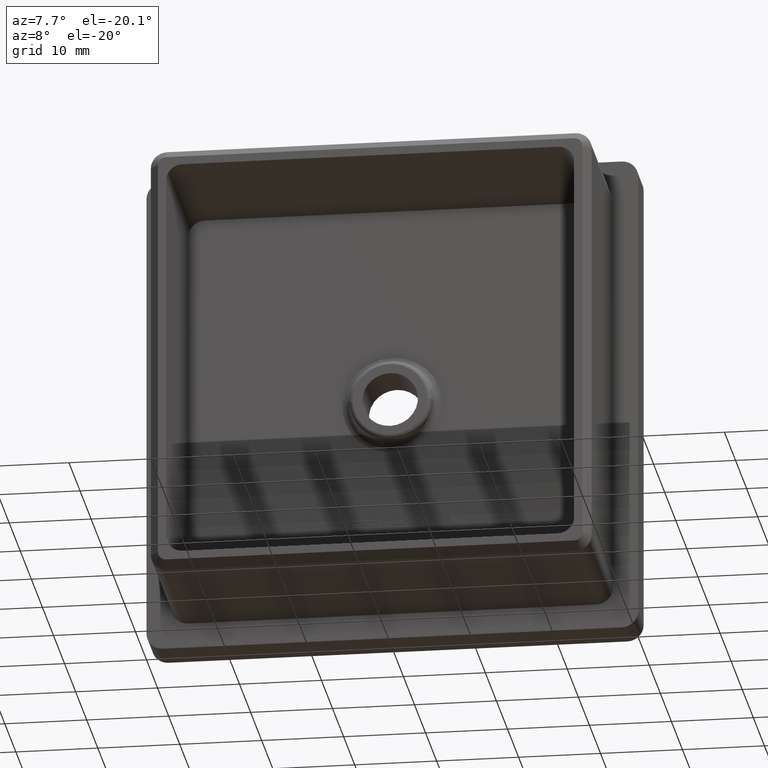
[diagram: clean part render]
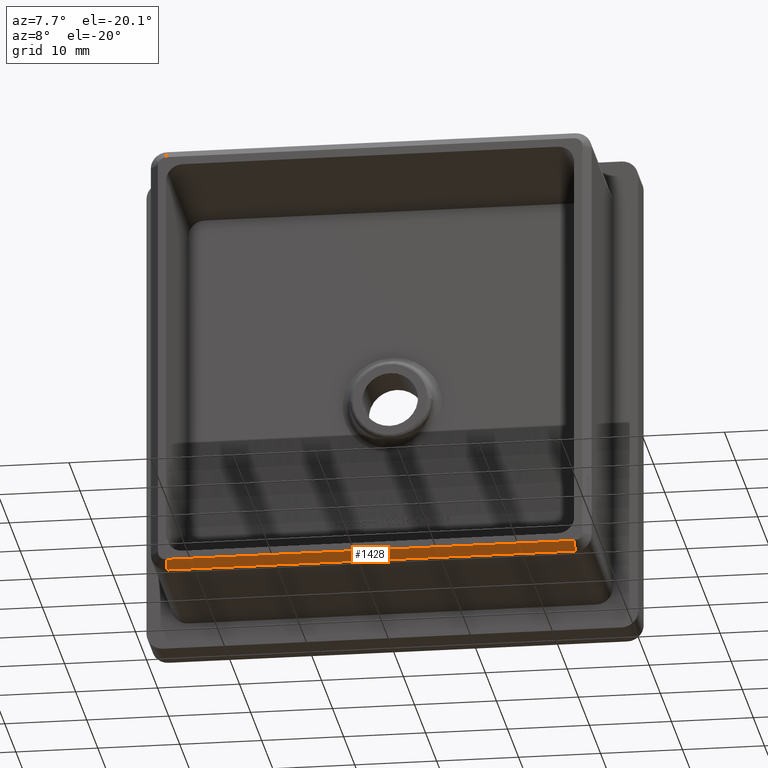
[diagram: same view with one face highlighted and labeled with its STEP entity id]
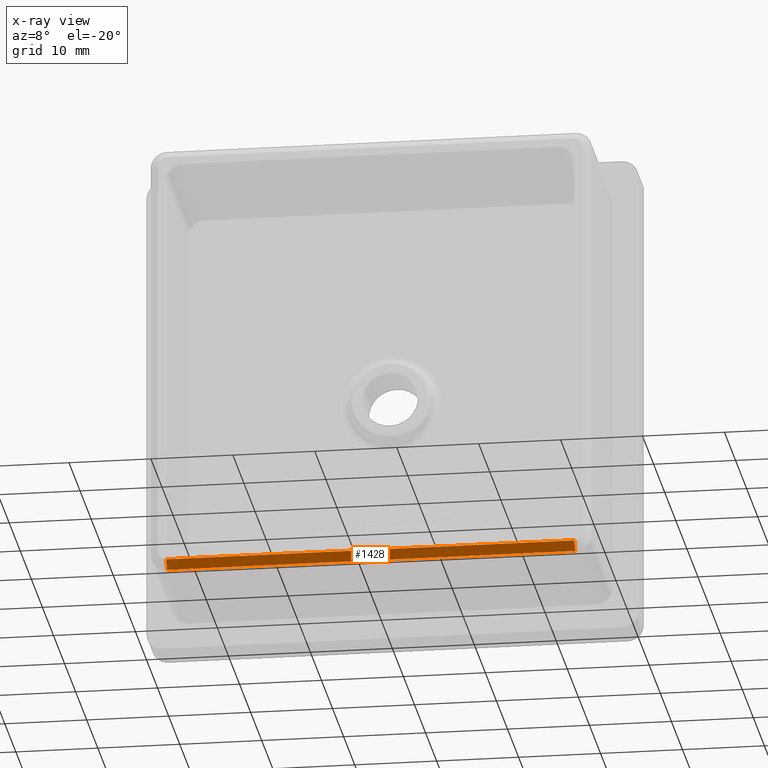
[diagram: x-ray of the same camera — body ghosted, the highlighted face saturated]
A machine part, auxiliary view. The second image highlights one B-rep face of the part: STEP entity #1428.
The next image is the same camera in x-ray: the body ghosted, the highlighted face saturated — about 0% of this face is hidden behind the body in this view.
In plain terms, the highlighted planar face has unit normal (-0, -0.7071, -0.7071).
Its self-contained STEP definition (entity closure, byte-faithful):
#565 = EDGE_CURVE ( 'NONE', #6296, #16796, #12768, .T. ) ;
#858 = DIRECTION ( 'NONE',  ( 0.0000000000000000000, 0.7071067811865489100, -0.7071067811865462400 ) ) ;
#1428 = ADVANCED_FACE ( 'NONE', ( #18547 ), #15920, .T. ) ;
#2780 = CARTESIAN_POINT ( 'NONE',  ( 24.89999999999999900, -20.00000000000000000, -25.89999999999999500 ) ) ;
#2785 = ORIENTED_EDGE ( 'NONE', *, *, #10304, .T. ) ;
#4677 = CARTESIAN_POINT ( 'NONE',  ( 24.89999999999998400, -20.00000000000000000, -25.89999999999999500 ) ) ;
#5132 = VECTOR ( 'NONE', #8542, 1000.000000000000100 ) ;
#5946 = CARTESIAN_POINT ( 'NONE',  ( -24.89999999999999900, -20.00000000000000000, -25.89999999999999900 ) ) ;
#6296 = VERTEX_POINT ( 'NONE', #6336 ) ;
#6336 = CARTESIAN_POINT ( 'NONE',  ( 24.89999999999999900, -20.00000000000000000, -25.89999999999999500 ) ) ;
#8176 = VECTOR ( 'NONE', #858, 999.9999999999998900 ) ;
#8537 = EDGE_LOOP ( 'NONE', ( #2785, #9340, #16078, #12414 ) ) ;
#8542 = DIRECTION ( 'NONE',  ( 0.0000000000000000000, 0.7071067811865474600, -0.7071067811865474600 ) ) ;
#8643 = EDGE_CURVE ( 'NONE', #16796, #11011, #14668, .T. ) ;
#8978 = AXIS2_PLACEMENT_3D ( 'NONE', #16104, #13165, #13103 ) ;
#9340 = ORIENTED_EDGE ( 'NONE', *, *, #8643, .F. ) ;
#9976 = CARTESIAN_POINT ( 'NONE',  ( -24.89999999999999900, -19.00000000000000000, -26.89999999999999900 ) ) ;
#10304 = EDGE_CURVE ( 'NONE', #18977, #11011, #12105, .T. ) ;
#11011 = VERTEX_POINT ( 'NONE', #9976 ) ;
#11159 = CARTESIAN_POINT ( 'NONE',  ( 24.89999999999999900, -19.00000000000000000, -26.89999999999999900 ) ) ;
#12105 = LINE ( 'NONE', #17033, #8176 ) ;
#12414 = ORIENTED_EDGE ( 'NONE', *, *, #18207, .F. ) ;
#12600 = CARTESIAN_POINT ( 'NONE',  ( -24.89999999999999900, -19.00000000000000000, -26.89999999999999900 ) ) ;
#12768 = LINE ( 'NONE', #2780, #5132 ) ;
#13103 = DIRECTION ( 'NONE',  ( -1.000000000000000000, 0.0000000000000000000, 0.0000000000000000000 ) ) ;
#13165 = DIRECTION ( 'NONE',  ( -0.0000000000000000000, -0.7071067811865475700, -0.7071067811865475700 ) ) ;
#13875 = LINE ( 'NONE', #4677, #19189 ) ;
#14063 = DIRECTION ( 'NONE',  ( 1.000000000000000000, 0.0000000000000000000, 0.0000000000000000000 ) ) ;
#14668 = LINE ( 'NONE', #12600, #16254 ) ;
#15920 = PLANE ( 'NONE',  #8978 ) ;
#16078 = ORIENTED_EDGE ( 'NONE', *, *, #565, .F. ) ;
#16104 = CARTESIAN_POINT ( 'NONE',  ( 0.0000000000000000000, -20.00000000000000000, -25.89999999999999500 ) ) ;
#16254 = VECTOR ( 'NONE', #18497, 1000.000000000000000 ) ;
#16796 = VERTEX_POINT ( 'NONE', #11159 ) ;
#17033 = CARTESIAN_POINT ( 'NONE',  ( -24.89999999999999900, -20.00000000000000000, -25.89999999999999900 ) ) ;
#18207 = EDGE_CURVE ( 'NONE', #18977, #6296, #13875, .T. ) ;
#18497 = DIRECTION ( 'NONE',  ( -1.000000000000000000, 0.0000000000000000000, -0.0000000000000000000 ) ) ;
#18547 = FACE_OUTER_BOUND ( 'NONE', #8537, .T. ) ;
#18977 = VERTEX_POINT ( 'NONE', #5946 ) ;
#19189 = VECTOR ( 'NONE', #14063, 1000.000000000000000 ) ;